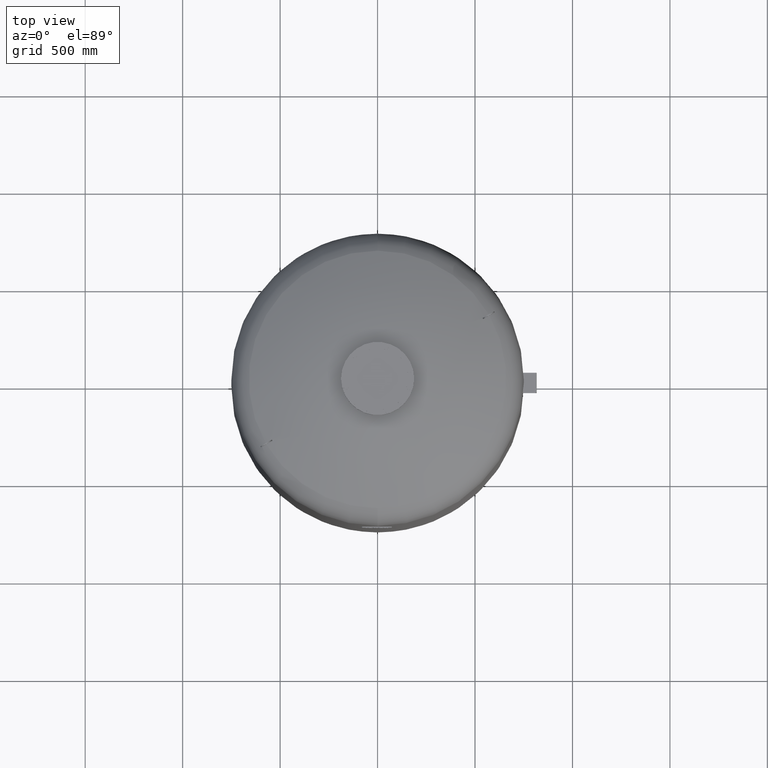
[diagram: clean part render]
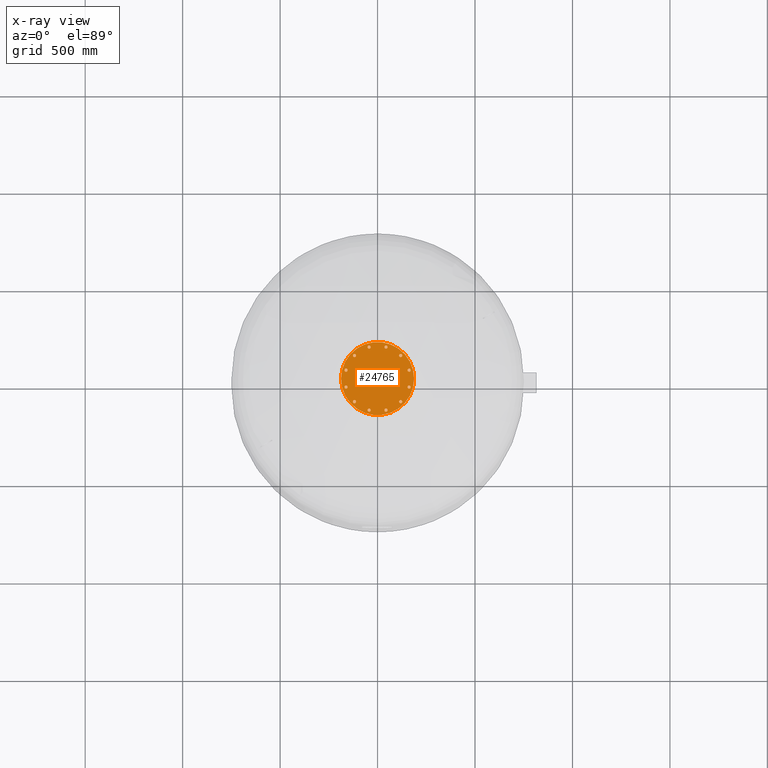
[diagram: x-ray — body ghosted, one internal face saturated and labeled with its STEP entity id]
A machine part, top view, then the same camera in x-ray: the body is ghosted and one INTERNAL B-rep face — a face not visible from any outside direction — is saturated and labeled: STEP entity #24765.
In plain terms, the highlighted planar face has unit normal (0, 0, -1).
Its self-contained STEP definition (entity closure, byte-faithful):
#16925=CARTESIAN_POINT('',(-187.500000000000000,-1.347111E-015,3033.0));
#16926=VERTEX_POINT('',#16925);
#16935=CARTESIAN_POINT('',(187.500000000000000,-2.430848E-014,3033.0));
#16936=VERTEX_POINT('',#16935);
#16937=CARTESIAN_POINT('',(-2.694223E-015,-1.347111E-015,3033.0));
#16938=DIRECTION('',(0.0,0.0,-1.0));
#16939=DIRECTION('',(-1.0,0.0,0.0));
#16940=AXIS2_PLACEMENT_3D('',#16937,#16938,#16939);
#16941=CIRCLE('',#16940,187.500000000000000);
#16942=EDGE_CURVE('',#16936,#16926,#16941,.T.);
#17137=CARTESIAN_POINT('',(126.440385848746640,118.440385848746840,3033.0));
#17138=VERTEX_POINT('',#17137);
#17154=CARTESIAN_POINT('',(110.440385848746630,118.440385848746840,3033.0));
#17155=VERTEX_POINT('',#17154);
#17162=CARTESIAN_POINT('',(118.440385848746640,118.440385848746840,3033.0));
#17163=DIRECTION('',(0.0,0.0,1.0));
#17164=DIRECTION('',(1.0,0.0,0.0));
#17165=AXIS2_PLACEMENT_3D('',#17162,#17163,#17164);
#17166=CIRCLE('',#17165,8.0);
#17167=EDGE_CURVE('',#17138,#17155,#17166,.T.);
#17339=CARTESIAN_POINT('',(168.720779133694440,39.352190054672405,3033.0));
#17340=VERTEX_POINT('',#17339);
#17356=CARTESIAN_POINT('',(154.864372673143440,47.352190054672405,3033.0));
#17357=VERTEX_POINT('',#17356);
#17364=CARTESIAN_POINT('',(161.792575903418940,43.352190054672405,3033.0));
#17365=DIRECTION('',(6.533413E-017,-3.772068E-017,1.000000000000000));
#17366=DIRECTION('',(0.866025403784439,-0.500000000000000,-7.544135E-017));
#17367=AXIS2_PLACEMENT_3D('',#17364,#17365,#17366);
#17368=CIRCLE('',#17367,8.0);
#17369=EDGE_CURVE('',#17340,#17357,#17368,.T.);
#17461=CARTESIAN_POINT('',(165.792575903419050,-50.280393284947571,3033.0));
#17462=VERTEX_POINT('',#17461);
#17478=CARTESIAN_POINT('',(157.792575903419050,-36.423986824396557,3033.0));
#17479=VERTEX_POINT('',#17478);
#17486=CARTESIAN_POINT('',(161.792575903419050,-43.352190054672064,3033.0));
#17487=DIRECTION('',(4.101789E-018,-7.104507E-018,1.0));
#17488=DIRECTION('',(0.500000000000000,-0.866025403784439,-8.203578E-018));
#17489=AXIS2_PLACEMENT_3D('',#17486,#17487,#17488);
#17490=CIRCLE('',#17489,8.0);
#17491=EDGE_CURVE('',#17462,#17479,#17490,.T.);
#17583=CARTESIAN_POINT('',(118.440385848746890,-126.440385848746640,3033.0));
#17584=VERTEX_POINT('',#17583);
#17600=CARTESIAN_POINT('',(118.440385848746890,-110.440385848746630,3033.0));
#17601=VERTEX_POINT('',#17600);
#17608=CARTESIAN_POINT('',(118.440385848746890,-118.440385848746640,3033.0));
#17609=DIRECTION('',(0.0,0.0,1.0));
#17610=DIRECTION('',(0.0,-1.0,0.0));
#17611=AXIS2_PLACEMENT_3D('',#17608,#17609,#17610);
#17612=CIRCLE('',#17611,8.0);
#17613=EDGE_CURVE('',#17584,#17601,#17612,.T.);
#17705=CARTESIAN_POINT('',(39.352190054672434,-168.720779133694440,3033.0));
#17706=VERTEX_POINT('',#17705);
#17722=CARTESIAN_POINT('',(47.352190054672427,-154.864372673143440,3033.0));
#17723=VERTEX_POINT('',#17722);
#17730=CARTESIAN_POINT('',(43.352190054672434,-161.792575903418940,3033.0));
#17731=DIRECTION('',(5.713055E-017,9.895302E-017,1.000000000000000));
#17732=DIRECTION('',(-0.500000000000000,-0.866025403784439,1.142611E-016));
#17733=AXIS2_PLACEMENT_3D('',#17730,#17731,#17732);
#17734=CIRCLE('',#17733,8.0);
#17735=EDGE_CURVE('',#17706,#17723,#17734,.T.);
#17827=CARTESIAN_POINT('',(-50.280393284947529,-165.792575903419050,3033.0));
#17828=VERTEX_POINT('',#17827);
#17844=CARTESIAN_POINT('',(-36.423986824396515,-157.792575903419050,3033.0));
#17845=VERTEX_POINT('',#17844);
#17852=CARTESIAN_POINT('',(-43.352190054672022,-161.792575903419050,3033.0));
#17853=DIRECTION('',(1.183629E-016,6.833685E-017,1.000000000000000));
#17854=DIRECTION('',(-0.866025403784439,-0.500000000000000,1.366737E-016));
#17855=AXIS2_PLACEMENT_3D('',#17852,#17853,#17854);
#17856=CIRCLE('',#17855,8.0);
#17857=EDGE_CURVE('',#17828,#17845,#17856,.T.);
#17949=CARTESIAN_POINT('',(-126.440385848746620,-118.440385848746840,3033.0));
#17950=VERTEX_POINT('',#17949);
#17966=CARTESIAN_POINT('',(-110.440385848746620,-118.440385848746840,3033.0));
#17967=VERTEX_POINT('',#17966);
#17974=CARTESIAN_POINT('',(-118.440385848746620,-118.440385848746840,3033.0));
#17975=DIRECTION('',(0.0,0.0,1.0));
#17976=DIRECTION('',(-1.0,0.0,0.0));
#17977=AXIS2_PLACEMENT_3D('',#17974,#17975,#17976);
#17978=CIRCLE('',#17977,8.0);
#17979=EDGE_CURVE('',#17950,#17967,#17978,.T.);
#18071=CARTESIAN_POINT('',(-168.720779133694440,-39.352190054672434,3033.0));
#18072=VERTEX_POINT('',#18071);
#18088=CARTESIAN_POINT('',(-154.864372673143440,-47.352190054672427,3033.0));
#18089=VERTEX_POINT('',#18088);
#18096=CARTESIAN_POINT('',(-161.792575903418940,-43.352190054672434,3033.0));
#18097=DIRECTION('',(6.533413E-017,-3.772068E-017,1.000000000000000));
#18098=DIRECTION('',(-0.866025403784439,0.500000000000000,7.544135E-017));
#18099=AXIS2_PLACEMENT_3D('',#18096,#18097,#18098);
#18100=CIRCLE('',#18099,8.0);
#18101=EDGE_CURVE('',#18072,#18089,#18100,.T.);
#18193=CARTESIAN_POINT('',(-165.792575903419050,50.280393284947500,3033.0));
#18194=VERTEX_POINT('',#18193);
#18210=CARTESIAN_POINT('',(-157.792575903419050,36.423986824396486,3033.0));
#18211=VERTEX_POINT('',#18210);
#18218=CARTESIAN_POINT('',(-161.792575903419050,43.352190054671993,3033.0));
#18219=DIRECTION('',(4.101789E-018,-7.104507E-018,1.0));
#18220=DIRECTION('',(-0.500000000000000,0.866025403784438,8.203578E-018));
#18221=AXIS2_PLACEMENT_3D('',#18218,#18219,#18220);
#18222=CIRCLE('',#18221,8.0);
#18223=EDGE_CURVE('',#18194,#18211,#18222,.T.);
#18315=CARTESIAN_POINT('',(-118.440385848746840,126.440385848746600,3033.0));
#18316=VERTEX_POINT('',#18315);
#18332=CARTESIAN_POINT('',(-118.440385848746840,110.440385848746590,3033.0));
#18333=VERTEX_POINT('',#18332);
#18340=CARTESIAN_POINT('',(-118.440385848746840,118.440385848746600,3033.0));
#18341=DIRECTION('',(0.0,0.0,1.0));
#18342=DIRECTION('',(0.0,1.0,0.0));
#18343=AXIS2_PLACEMENT_3D('',#18340,#18341,#18342);
#18344=CIRCLE('',#18343,8.000000000000002);
#18345=EDGE_CURVE('',#18316,#18333,#18344,.T.);
#18437=CARTESIAN_POINT('',(-39.352190054672498,168.720779133694410,3033.0));
#18438=VERTEX_POINT('',#18437);
#18454=CARTESIAN_POINT('',(-47.352190054672491,154.864372673143410,3033.0));
#18455=VERTEX_POINT('',#18454);
#18462=CARTESIAN_POINT('',(-43.352190054672491,161.792575903418910,3033.0));
#18463=DIRECTION('',(5.713055E-017,9.895302E-017,1.0));
#18464=DIRECTION('',(0.499999999999999,0.866025403784439,-1.142611E-016));
#18465=AXIS2_PLACEMENT_3D('',#18462,#18463,#18464);
#18466=CIRCLE('',#18465,8.0);
#18467=EDGE_CURVE('',#18438,#18455,#18466,.T.);
#18559=CARTESIAN_POINT('',(50.280393284947500,165.792575903419050,3033.0));
#18560=VERTEX_POINT('',#18559);
#18576=CARTESIAN_POINT('',(36.423986824396486,157.792575903419050,3033.0));
#18577=VERTEX_POINT('',#18576);
#18584=CARTESIAN_POINT('',(43.352190054671993,161.792575903419050,3033.0));
#18585=DIRECTION('',(1.183629E-016,6.833685E-017,1.0));
#18586=DIRECTION('',(0.866025403784438,0.500000000000000,-1.366737E-016));
#18587=AXIS2_PLACEMENT_3D('',#18584,#18585,#18586);
#18588=CIRCLE('',#18587,8.0);
#18589=EDGE_CURVE('',#18560,#18577,#18588,.T.);
#18600=CARTESIAN_POINT('',(43.352190054671993,161.792575903419050,3033.0));
#18601=DIRECTION('',(1.183629E-016,6.833685E-017,1.0));
#18602=DIRECTION('',(0.866025403784438,0.500000000000000,-1.366737E-016));
#18603=AXIS2_PLACEMENT_3D('',#18600,#18601,#18602);
#18604=CIRCLE('',#18603,8.0);
#18605=EDGE_CURVE('',#18577,#18560,#18604,.T.);
#18874=CARTESIAN_POINT('',(-43.352190054672491,161.792575903418910,3033.0));
#18875=DIRECTION('',(5.713055E-017,9.895302E-017,1.0));
#18876=DIRECTION('',(0.499999999999999,0.866025403784439,-1.142611E-016));
#18877=AXIS2_PLACEMENT_3D('',#18874,#18875,#18876);
#18878=CIRCLE('',#18877,8.0);
#18879=EDGE_CURVE('',#18455,#18438,#18878,.T.);
#19148=CARTESIAN_POINT('',(-118.440385848746840,118.440385848746600,3033.0));
#19149=DIRECTION('',(0.0,0.0,1.0));
#19150=DIRECTION('',(0.0,1.0,0.0));
#19151=AXIS2_PLACEMENT_3D('',#19148,#19149,#19150);
#19152=CIRCLE('',#19151,8.000000000000002);
#19153=EDGE_CURVE('',#18333,#18316,#19152,.T.);
#19422=CARTESIAN_POINT('',(-161.792575903419050,43.352190054671993,3033.0));
#19423=DIRECTION('',(4.101789E-018,-7.104507E-018,1.0));
#19424=DIRECTION('',(-0.500000000000000,0.866025403784438,8.203578E-018));
#19425=AXIS2_PLACEMENT_3D('',#19422,#19423,#19424);
#19426=CIRCLE('',#19425,8.0);
#19427=EDGE_CURVE('',#18211,#18194,#19426,.T.);
#19696=CARTESIAN_POINT('',(-161.792575903418940,-43.352190054672434,3033.0));
#19697=DIRECTION('',(6.533413E-017,-3.772068E-017,1.000000000000000));
#19698=DIRECTION('',(-0.866025403784439,0.500000000000000,7.544135E-017));
#19699=AXIS2_PLACEMENT_3D('',#19696,#19697,#19698);
#19700=CIRCLE('',#19699,8.0);
#19701=EDGE_CURVE('',#18089,#18072,#19700,.T.);
#19970=CARTESIAN_POINT('',(-118.440385848746620,-118.440385848746840,3033.0));
#19971=DIRECTION('',(0.0,0.0,1.0));
#19972=DIRECTION('',(-1.0,0.0,0.0));
#19973=AXIS2_PLACEMENT_3D('',#19970,#19971,#19972);
#19974=CIRCLE('',#19973,8.0);
#19975=EDGE_CURVE('',#17967,#17950,#19974,.T.);
#20244=CARTESIAN_POINT('',(-43.352190054672022,-161.792575903419050,3033.0));
#20245=DIRECTION('',(1.183629E-016,6.833685E-017,1.000000000000000));
#20246=DIRECTION('',(-0.866025403784439,-0.500000000000000,1.366737E-016));
#20247=AXIS2_PLACEMENT_3D('',#20244,#20245,#20246);
#20248=CIRCLE('',#20247,8.0);
#20249=EDGE_CURVE('',#17845,#17828,#20248,.T.);
#20518=CARTESIAN_POINT('',(43.352190054672434,-161.792575903418940,3033.0));
#20519=DIRECTION('',(5.713055E-017,9.895302E-017,1.000000000000000));
#20520=DIRECTION('',(-0.500000000000000,-0.866025403784439,1.142611E-016));
#20521=AXIS2_PLACEMENT_3D('',#20518,#20519,#20520);
#20522=CIRCLE('',#20521,8.0);
#20523=EDGE_CURVE('',#17723,#17706,#20522,.T.);
#20792=CARTESIAN_POINT('',(118.440385848746890,-118.440385848746640,3033.0));
#20793=DIRECTION('',(0.0,0.0,1.0));
#20794=DIRECTION('',(0.0,-1.0,0.0));
#20795=AXIS2_PLACEMENT_3D('',#20792,#20793,#20794);
#20796=CIRCLE('',#20795,8.0);
#20797=EDGE_CURVE('',#17601,#17584,#20796,.T.);
#21066=CARTESIAN_POINT('',(161.792575903419050,-43.352190054672064,3033.0));
#21067=DIRECTION('',(4.101789E-018,-7.104507E-018,1.0));
#21068=DIRECTION('',(0.500000000000000,-0.866025403784439,-8.203578E-018));
#21069=AXIS2_PLACEMENT_3D('',#21066,#21067,#21068);
#21070=CIRCLE('',#21069,8.0);
#21071=EDGE_CURVE('',#17479,#17462,#21070,.T.);
#21340=CARTESIAN_POINT('',(161.792575903418940,43.352190054672405,3033.0));
#21341=DIRECTION('',(6.533413E-017,-3.772068E-017,1.000000000000000));
#21342=DIRECTION('',(0.866025403784439,-0.500000000000000,-7.544135E-017));
#21343=AXIS2_PLACEMENT_3D('',#21340,#21341,#21342);
#21344=CIRCLE('',#21343,8.0);
#21345=EDGE_CURVE('',#17357,#17340,#21344,.T.);
#21864=CARTESIAN_POINT('',(118.440385848746640,118.440385848746840,3033.0));
#21865=DIRECTION('',(0.0,0.0,1.0));
#21866=DIRECTION('',(1.0,0.0,0.0));
#21867=AXIS2_PLACEMENT_3D('',#21864,#21865,#21866);
#21868=CIRCLE('',#21867,8.0);
#21869=EDGE_CURVE('',#17155,#17138,#21868,.T.);
#24698=CARTESIAN_POINT('',(-2.694223E-015,-1.347111E-015,3033.0));
#24699=DIRECTION('',(0.0,0.0,-1.0));
#24700=DIRECTION('',(-1.0,0.0,0.0));
#24701=AXIS2_PLACEMENT_3D('',#24698,#24699,#24700);
#24702=CIRCLE('',#24701,187.500000000000000);
#24703=EDGE_CURVE('',#16926,#16936,#24702,.T.);
#24708=CARTESIAN_POINT('',(-93.749999999999929,-1.347111E-015,3033.0));
#24709=DIRECTION('',(0.0,0.0,-1.0));
#24710=DIRECTION('',(0.0,-1.0,0.0));
#24711=AXIS2_PLACEMENT_3D('',#24708,#24709,#24710);
#24712=PLANE('',#24711);
#24713=ORIENTED_EDGE('',*,*,#24703,.T.);
#24714=ORIENTED_EDGE('',*,*,#16942,.T.);
#24715=EDGE_LOOP('',(#24713,#24714));
#24716=FACE_OUTER_BOUND('',#24715,.T.);
#24717=ORIENTED_EDGE('',*,*,#18605,.T.);
#24718=ORIENTED_EDGE('',*,*,#18589,.T.);
#24719=EDGE_LOOP('',(#24717,#24718));
#24720=FACE_BOUND('',#24719,.T.);
#24721=ORIENTED_EDGE('',*,*,#18879,.T.);
#24722=ORIENTED_EDGE('',*,*,#18467,.T.);
#24723=EDGE_LOOP('',(#24721,#24722));
#24724=FACE_BOUND('',#24723,.T.);
#24725=ORIENTED_EDGE('',*,*,#19153,.T.);
#24726=ORIENTED_EDGE('',*,*,#18345,.T.);
#24727=EDGE_LOOP('',(#24725,#24726));
#24728=FACE_BOUND('',#24727,.T.);
#24729=ORIENTED_EDGE('',*,*,#19427,.T.);
#24730=ORIENTED_EDGE('',*,*,#18223,.T.);
#24731=EDGE_LOOP('',(#24729,#24730));
#24732=FACE_BOUND('',#24731,.T.);
#24733=ORIENTED_EDGE('',*,*,#19701,.T.);
#24734=ORIENTED_EDGE('',*,*,#18101,.T.);
#24735=EDGE_LOOP('',(#24733,#24734));
#24736=FACE_BOUND('',#24735,.T.);
#24737=ORIENTED_EDGE('',*,*,#19975,.T.);
#24738=ORIENTED_EDGE('',*,*,#17979,.T.);
#24739=EDGE_LOOP('',(#24737,#24738));
#24740=FACE_BOUND('',#24739,.T.);
#24741=ORIENTED_EDGE('',*,*,#20249,.T.);
#24742=ORIENTED_EDGE('',*,*,#17857,.T.);
#24743=EDGE_LOOP('',(#24741,#24742));
#24744=FACE_BOUND('',#24743,.T.);
#24745=ORIENTED_EDGE('',*,*,#20523,.T.);
#24746=ORIENTED_EDGE('',*,*,#17735,.T.);
#24747=EDGE_LOOP('',(#24745,#24746));
#24748=FACE_BOUND('',#24747,.T.);
#24749=ORIENTED_EDGE('',*,*,#20797,.T.);
#24750=ORIENTED_EDGE('',*,*,#17613,.T.);
#24751=EDGE_LOOP('',(#24749,#24750));
#24752=FACE_BOUND('',#24751,.T.);
#24753=ORIENTED_EDGE('',*,*,#21071,.T.);
#24754=ORIENTED_EDGE('',*,*,#17491,.T.);
#24755=EDGE_LOOP('',(#24753,#24754));
#24756=FACE_BOUND('',#24755,.T.);
#24757=ORIENTED_EDGE('',*,*,#21345,.T.);
#24758=ORIENTED_EDGE('',*,*,#17369,.T.);
#24759=EDGE_LOOP('',(#24757,#24758));
#24760=FACE_BOUND('',#24759,.T.);
#24761=ORIENTED_EDGE('',*,*,#21869,.T.);
#24762=ORIENTED_EDGE('',*,*,#17167,.T.);
#24763=EDGE_LOOP('',(#24761,#24762));
#24764=FACE_BOUND('',#24763,.T.);
#24765=ADVANCED_FACE('',(#24716,#24720,#24724,#24728,#24732,#24736,#24740,#24744,#24748,#24752,#24756,#24760,#24764),#24712,.T.);